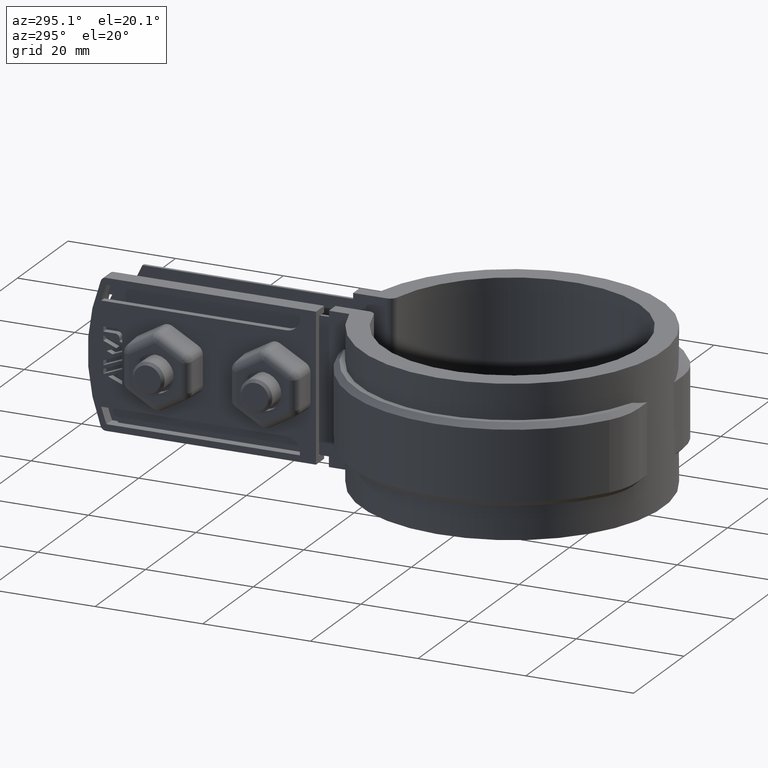
[diagram: clean part render]
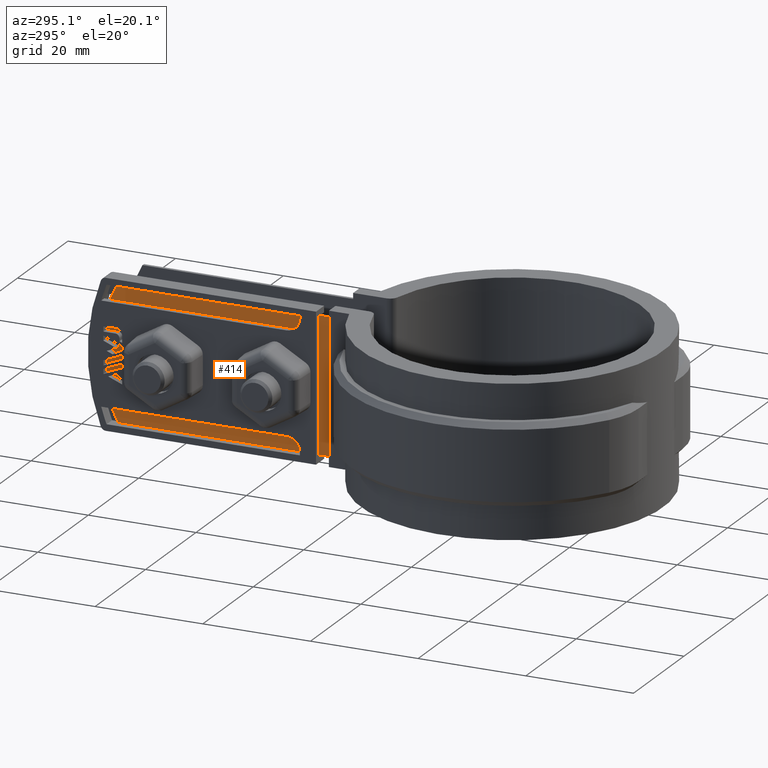
[diagram: same view with one face highlighted and labeled with its STEP entity id]
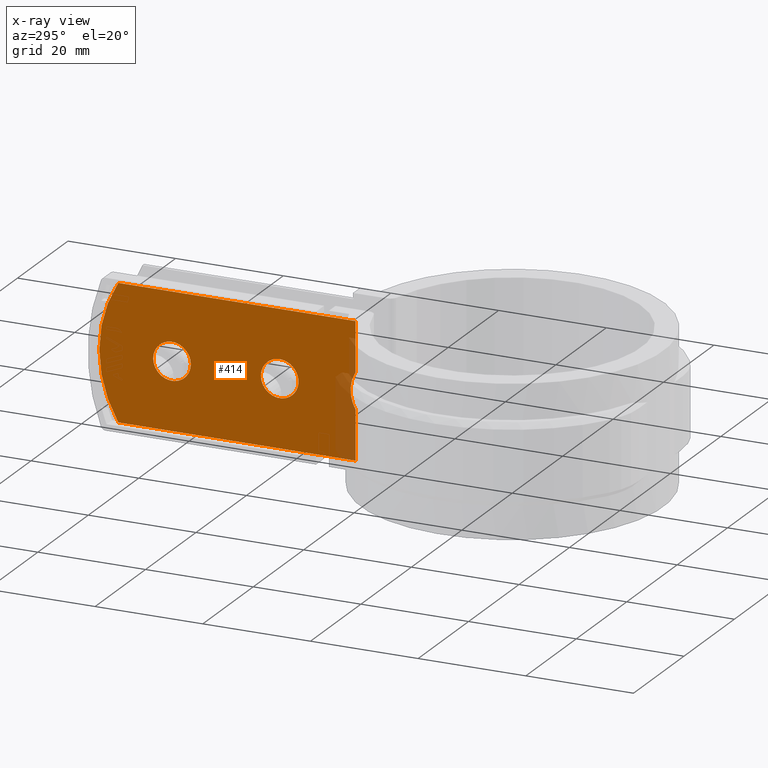
[diagram: x-ray of the same camera — body ghosted, the highlighted face saturated]
A machine part, auxiliary view. The second image highlights one B-rep face of the part: STEP entity #414.
The next image is the same camera in x-ray: the body ghosted, the highlighted face saturated — about 6% of this face is hidden behind the body in this view.
In plain terms, the highlighted planar face has unit normal (1, -0, 0).
Its self-contained STEP definition (entity closure, byte-faithful):
#414 = ADVANCED_FACE( '', ( #836, #837, #838 ), #839, .F. );
#836 = FACE_OUTER_BOUND( '', #1908, .T. );
#837 = FACE_BOUND( '', #1909, .T. );
#838 = FACE_BOUND( '', #1910, .T. );
#839 = PLANE( '', #1911 );
#1908 = EDGE_LOOP( '', ( #4215, #4216, #4217, #4218, #4219, #4220 ) );
#1909 = EDGE_LOOP( '', ( #4221 ) );
#1910 = EDGE_LOOP( '', ( #4222 ) );
#1911 = AXIS2_PLACEMENT_3D( '', #4223, #4224, #4225 );
#4215 = ORIENTED_EDGE( '', *, *, #7522, .F. );
#4216 = ORIENTED_EDGE( '', *, *, #7507, .F. );
#4217 = ORIENTED_EDGE( '', *, *, #7499, .F. );
#4218 = ORIENTED_EDGE( '', *, *, #7534, .F. );
#4219 = ORIENTED_EDGE( '', *, *, #7395, .T. );
#4220 = ORIENTED_EDGE( '', *, *, #7535, .F. );
#4221 = ORIENTED_EDGE( '', *, *, #7517, .F. );
#4222 = ORIENTED_EDGE( '', *, *, #7515, .F. );
#4223 = CARTESIAN_POINT( '', ( -5.10000000000000, 74.2998007960223, 0.000000000000000 ) );
#4224 = DIRECTION( '', ( 1.00000000000000, -6.12303176911189E-017, 0.000000000000000 ) );
#4225 = DIRECTION( '', ( 0.000000000000000, 0.000000000000000, 1.00000000000000 ) );
#7395 = EDGE_CURVE( '', #8391, #8389, #8392, .T. );
#7499 = EDGE_CURVE( '', #8568, #8571, #8572, .F. );
#7507 = EDGE_CURVE( '', #8571, #8579, #8581, .T. );
#7515 = EDGE_CURVE( '', #8591, #8591, #8592, .F. );
#7517 = EDGE_CURVE( '', #8595, #8595, #8596, .F. );
#7522 = EDGE_CURVE( '', #8579, #8603, #8604, .T. );
#7534 = EDGE_CURVE( '', #8391, #8568, #8618, .T. );
#7535 = EDGE_CURVE( '', #8603, #8389, #8619, .T. );
#8389 = VERTEX_POINT( '', #10142 );
#8391 = VERTEX_POINT( '', #10144 );
#8392 = LINE( '', #10145, #10146 );
#8568 = VERTEX_POINT( '', #10937 );
#8571 = VERTEX_POINT( '', #10941 );
#8572 = LINE( '', #10942, #10943 );
#8579 = VERTEX_POINT( '', #10954 );
#8581 = LINE( '', #10969, #10970 );
#8591 = VERTEX_POINT( '', #11007 );
#8592 = CIRCLE( '', #11008, 3.50000000000000 );
#8595 = VERTEX_POINT( '', #11011 );
#8596 = CIRCLE( '', #11012, 3.50000000000000 );
#8603 = VERTEX_POINT( '', #11029 );
#8604 = B_SPLINE_CURVE_WITH_KNOTS( '', 3, ( #11030, #11031, #11032, #11033, #11034, #11035, #11036, #11037, #11038, #11039, #11040, #11041, #11042, #11043, #11044, #11045 ), .UNSPECIFIED., .F., .F., ( 4, 2, 2, 2, 2, 2, 2, 4 ), ( 3.46944695195361E-018, 0.00174299968865411, 0.00261449953298116, 0.00348599937730821, 0.00435749922163526, 0.00522899906596230, 0.00610049891028935, 0.00697199875461640 ), .UNSPECIFIED. );
#8618 = CIRCLE( '', #11095, 24.0000000000000 );
#8619 = LINE( '', #11096, #11097 );
#10142 = CARTESIAN_POINT( '', ( -5.10000000000000, 26.7207784317748, -25.0000000000000 ) );
#10144 = CARTESIAN_POINT( '', ( -5.10000000000000, 70.7876020445702, -25.0000000000000 ) );
#10145 = CARTESIAN_POINT( '', ( -5.10000000000000, 74.2998007960223, -25.0000000000000 ) );
#10146 = VECTOR( '', #13884, 1000.00000000000 );
#10937 = CARTESIAN_POINT( '', ( -5.10000000000000, 70.7876020445702, -8.69622630798603E-031 ) );
#10941 = CARTESIAN_POINT( '', ( -5.10000000000000, 26.7207784317748, 0.000000000000000 ) );
#10942 = CARTESIAN_POINT( '', ( -5.10000000000000, 26.7207784317748, 0.000000000000000 ) );
#10943 = VECTOR( '', #13981, 1000.00000000000 );
#10954 = CARTESIAN_POINT( '', ( -5.10000000000000, 26.7207784317748, -9.15908806570543 ) );
#10969 = CARTESIAN_POINT( '', ( -5.10000000000000, 26.7207784317748, 0.000000000000000 ) );
#10970 = VECTOR( '', #13992, 1000.00000000000 );
#11007 = CARTESIAN_POINT( '', ( -5.09999999999999, 44.2998007960223, -12.5000000000000 ) );
#11008 = AXIS2_PLACEMENT_3D( '', #13994, #13995, #13996 );
#11011 = CARTESIAN_POINT( '', ( -5.09999999999999, 64.2998007960223, -12.5000000000000 ) );
#11012 = AXIS2_PLACEMENT_3D( '', #14000, #14001, #14002 );
#11029 = CARTESIAN_POINT( '', ( -5.10000000000000, 26.7207784317748, -15.8409119342946 ) );
#11030 = CARTESIAN_POINT( '', ( -5.10000000000000, 26.7207784317748, -9.15908806570543 ) );
#11031 = CARTESIAN_POINT( '', ( -5.10000000000000, 27.0205294773263, -9.66664872261631 ) );
#11032 = CARTESIAN_POINT( '', ( -5.10000000000001, 27.2452219664692, -10.2027864551037 ) );
#11033 = CARTESIAN_POINT( '', ( -5.10000000000001, 27.4761585568552, -11.0473893672440 ) );
#11034 = CARTESIAN_POINT( '', ( -5.10000000000000, 27.5352513861619, -11.3376905433881 ) );
#11035 = CARTESIAN_POINT( '', ( -5.10000000000000, 27.6133924014708, -11.9166879478181 ) );
#11036 = CARTESIAN_POINT( '', ( -5.10000000000000, 27.6330516047013, -12.2066986007342 ) );
#11037 = CARTESIAN_POINT( '', ( -5.10000000000000, 27.6333018369987, -12.7877502844698 ) );
#11038 = CARTESIAN_POINT( '', ( -5.10000000000000, 27.6138904822865, -13.0787913781587 ) );
#11039 = CARTESIAN_POINT( '', ( -5.10000000000000, 27.5354151196663, -13.6619193583984 ) );
#11040 = CARTESIAN_POINT( '', ( -5.10000000000001, 27.4768801280401, -13.9492274107866 ) );
#11041 = CARTESIAN_POINT( '', ( -5.10000000000001, 27.3238218400565, -14.5104836649792 ) );
#11042 = CARTESIAN_POINT( '', ( -5.09999999999999, 27.2291784708624, -14.7853029125134 ) );
#11043 = CARTESIAN_POINT( '', ( -5.10000000000000, 27.0029791058853, -15.3231042464679 ) );
#11044 = CARTESIAN_POINT( '', ( -5.10000000000000, 26.8706507873209, -15.5871369688267 ) );
#11045 = CARTESIAN_POINT( '', ( -5.10000000000000, 26.7207784317748, -15.8409119342946 ) );
#11095 = AXIS2_PLACEMENT_3D( '', #14016, #14017, #14018 );
#11096 = CARTESIAN_POINT( '', ( -5.10000000000000, 26.7207784317748, 0.000000000000000 ) );
#11097 = VECTOR( '', #14019, 1000.00000000000 );
#13884 = DIRECTION( '', ( -6.12303176911189E-017, -1.00000000000000, 0.000000000000000 ) );
#13981 = DIRECTION( '', ( 6.12303176911189E-017, 1.00000000000000, 0.000000000000000 ) );
#13992 = DIRECTION( '', ( 0.000000000000000, 0.000000000000000, -1.00000000000000 ) );
#13994 = CARTESIAN_POINT( '', ( -5.09999999999999, 40.7998007960223, -12.5000000000000 ) );
#13995 = DIRECTION( '', ( 1.00000000000000, -6.12303176911189E-017, 0.000000000000000 ) );
#13996 = DIRECTION( '', ( 6.12303176911189E-017, 1.00000000000000, 0.000000000000000 ) );
#14000 = CARTESIAN_POINT( '', ( -5.09999999999999, 60.7998007960223, -12.5000000000000 ) );
#14001 = DIRECTION( '', ( 1.00000000000000, -6.12303176911189E-017, 0.000000000000000 ) );
#14002 = DIRECTION( '', ( 6.12303176911189E-017, 1.00000000000000, 0.000000000000000 ) );
#14016 = CARTESIAN_POINT( '', ( -5.09999999999999, 50.2998007960223, -12.5000000000000 ) );
#14017 = DIRECTION( '', ( 1.00000000000000, -6.12303176911189E-017, 0.000000000000000 ) );
#14018 = DIRECTION( '', ( 6.12303176911189E-017, 1.00000000000000, 0.000000000000000 ) );
#14019 = DIRECTION( '', ( 0.000000000000000, 0.000000000000000, -1.00000000000000 ) );